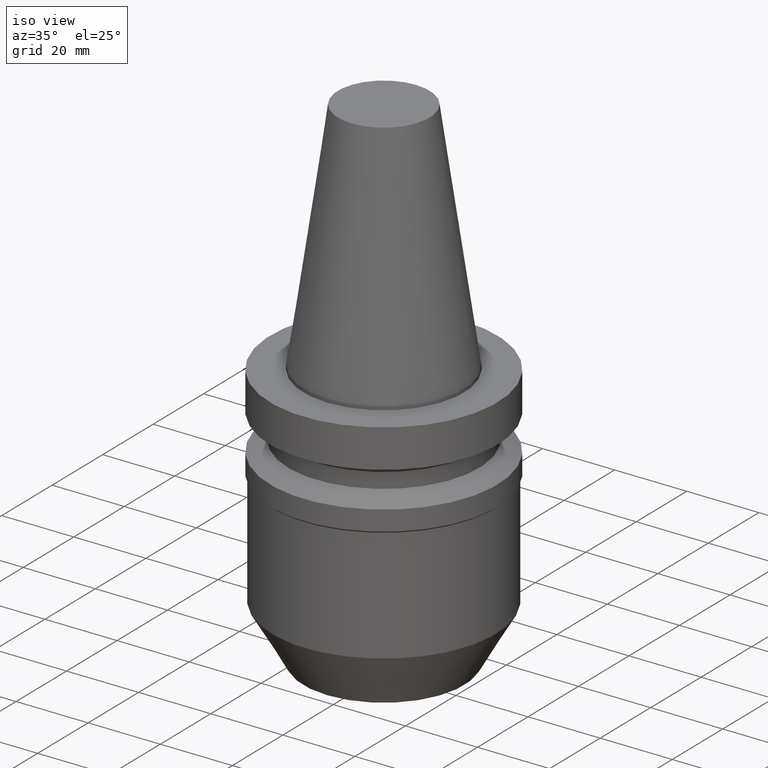
[diagram: clean part render]
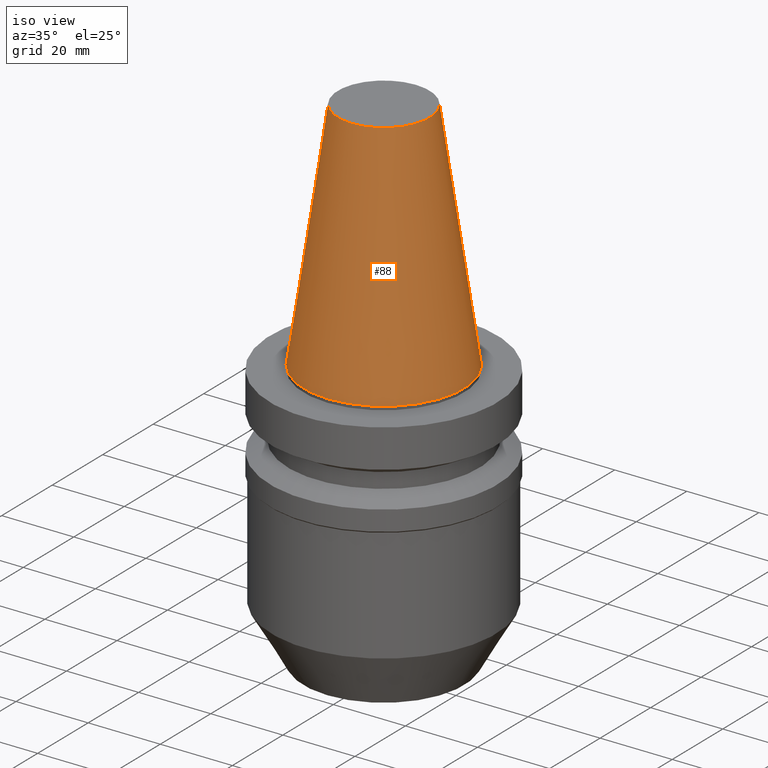
[diagram: same view with one face highlighted and labeled with its STEP entity id]
A machine part, iso view. The second image highlights one B-rep face of the part: STEP entity #88.
In plain terms, the highlighted conical surface has half-angle 8.297 deg.
Its self-contained STEP definition (entity closure, byte-faithful):
#88=ADVANCED_FACE('',(#129,#130),#131,.T.);
#129=FACE_BOUND('',#172,.T.);
#130=FACE_BOUND('',#173,.T.);
#131=CONICAL_SURFACE('',#174,17.4563131601589,0.144812498267785);
#172=EDGE_LOOP('',(#241));
#173=EDGE_LOOP('',(#242));
#174=AXIS2_PLACEMENT_3D('',#243,#244,#245);
#241=ORIENTED_EDGE('',*,*,#263,.F.);
#242=ORIENTED_EDGE('',*,*,#262,.T.);
#243=CARTESIAN_POINT('',(-2.00229751660591E-015,-4.00459503321182E-015,32.6999999999998));
#244=DIRECTION('',(6.12323399573677E-017,1.22464679914812E-016,-1.0));
#245=DIRECTION('',(-1.23259516440797E-032,1.0,1.22464679914812E-016));
#262=EDGE_CURVE('',#288,#288,#289,.T.);
#263=EDGE_CURVE('',#290,#290,#291,.T.);
#288=VERTEX_POINT('',#316);
#289=CIRCLE('',#317,22.2250631611222);
#290=VERTEX_POINT('',#318);
#291=CIRCLE('',#319,12.6875631591956);
#316=CARTESIAN_POINT('',(-2.43328883831894E-031,22.2250631611222,2.2217852461116E-015));
#317=AXIS2_PLACEMENT_3D('',#356,#357,#358);
#318=CARTESIAN_POINT('',(-4.00459503321182E-015,12.6875631591955,65.3999999999995));
#319=AXIS2_PLACEMENT_3D('',#359,#360,#361);
#356=CARTESIAN_POINT('',(0.0,0.0,0.0));
#357=DIRECTION('',(-6.12323399573677E-017,-1.22464679914671E-016,1.0));
#358=DIRECTION('',(-1.23259516440794E-032,1.0,1.22464679914671E-016));
#359=CARTESIAN_POINT('',(-4.00459503321182E-015,-8.00919006642363E-015,65.3999999999995));
#360=DIRECTION('',(-6.12323399573677E-017,-1.22464679914676E-016,1.0));
#361=DIRECTION('',(-1.23259516440802E-032,1.0,1.22464679914676E-016));